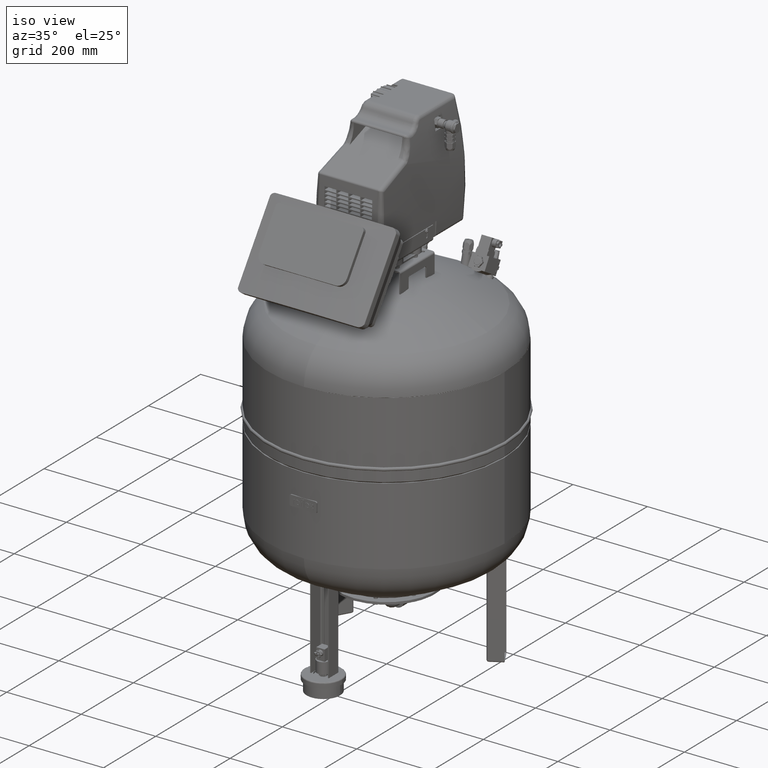
[diagram: clean part render]
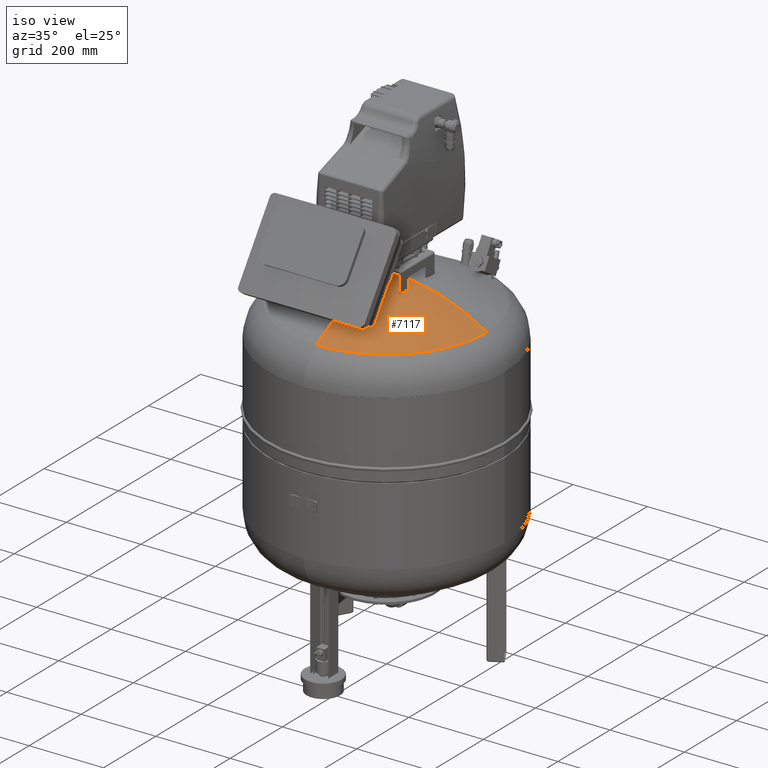
[diagram: same view with one face highlighted and labeled with its STEP entity id]
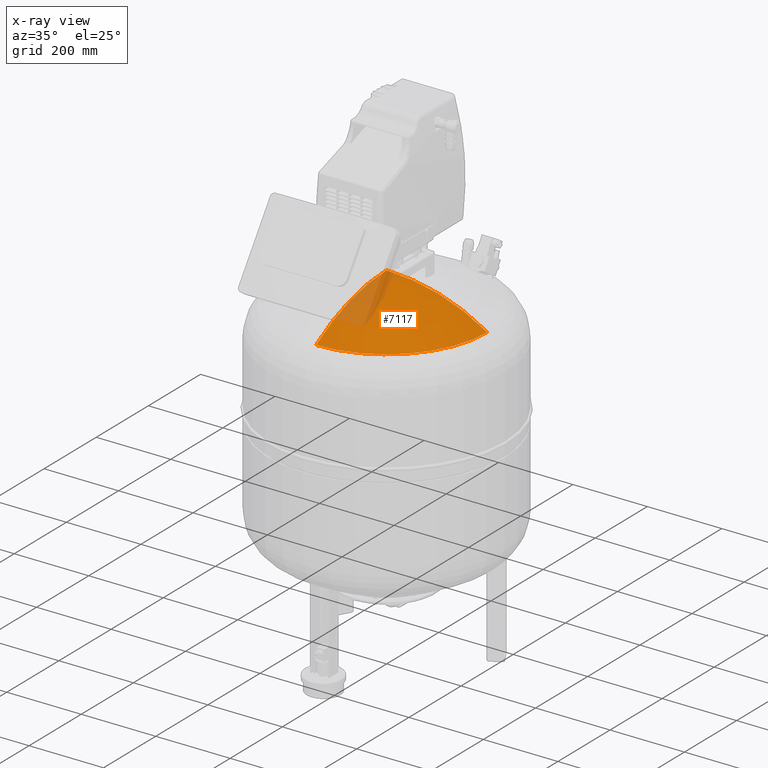
[diagram: x-ray of the same camera — body ghosted, the highlighted face saturated]
A machine part, iso view. The second image highlights one B-rep face of the part: STEP entity #7117.
The next image is the same camera in x-ray: the body ghosted, the highlighted face saturated — about 16% of this face is hidden behind the body in this view.
In plain terms, the highlighted spherical surface has radius 509 mm.
Its self-contained STEP definition (entity closure, byte-faithful):
#7034=AXIS2_PLACEMENT_3D('Circle Axis2P3D',#7032,#7033,$) ;
#7093=AXIS2_PLACEMENT_3D('Circle Axis2P3D',#7091,#7092,$) ;
#7105=AXIS2_PLACEMENT_3D('Sphere Axis2P3D',#7102,#7103,#7104) ;
#7109=AXIS2_PLACEMENT_3D('Circle Axis2P3D',#7107,#7108,$) ;
#7029=CARTESIAN_POINT('Vertex',(270.63902439,1.558363E-013,853.086439681)) ;
#7032=CARTESIAN_POINT('Axis2P3D Location',(8.06582611976E-015,2.38541500692E-014,853.086439681)) ;
#7036=CARTESIAN_POINT('Vertex',(4.12095476142E-014,-270.63902439,853.086439681)) ;
#7088=CARTESIAN_POINT('Vertex',(-1.31741861038E-013,1.558363E-013,931.)) ;
#7091=CARTESIAN_POINT('Axis2P3D Location',(-1.005746E-013,1.558363E-013,422.)) ;
#7102=CARTESIAN_POINT('Axis2P3D Location',(-1.005746E-013,1.558363E-013,422.)) ;
#7107=CARTESIAN_POINT('Axis2P3D Location',(-1.005746E-013,1.558363E-013,422.)) ;
#7033=DIRECTION('Axis2P3D Direction',(-9.619823E-017,0.,-1.)) ;
#7092=DIRECTION('Axis2P3D Direction',(0.,-1.,0.)) ;
#7103=DIRECTION('Axis2P3D Direction',(0.,0.,1.)) ;
#7104=DIRECTION('Axis2P3D XDirection',(-1.83697019872E-016,-1.,0.)) ;
#7108=DIRECTION('Axis2P3D Direction',(-1.,1.83697019872E-016,0.)) ;
#7113=ORIENTED_EDGE('',*,*,#7111,.F.) ;
#7114=ORIENTED_EDGE('',*,*,#7038,.F.) ;
#7115=ORIENTED_EDGE('',*,*,#7095,.F.) ;
#7117=ADVANCED_FACE('2AE',(#7116),#7106,.T.) ;
#7035=CIRCLE('generated circle',#7034,270.63902439) ;
#7094=CIRCLE('generated circle',#7093,509.) ;
#7110=CIRCLE('generated circle',#7109,509.) ;
#7038=EDGE_CURVE('',#7030,#7037,#7035,.T.) ;
#7095=EDGE_CURVE('',#7089,#7030,#7094,.F.) ;
#7111=EDGE_CURVE('',#7037,#7089,#7110,.T.) ;
#7112=EDGE_LOOP('',(#7113,#7114,#7115)) ;
#7116=FACE_OUTER_BOUND('',#7112,.T.) ;
#7106=SPHERICAL_SURFACE('',#7105,509.) ;
#7030=VERTEX_POINT('',#7029) ;
#7037=VERTEX_POINT('',#7036) ;
#7089=VERTEX_POINT('',#7088) ;